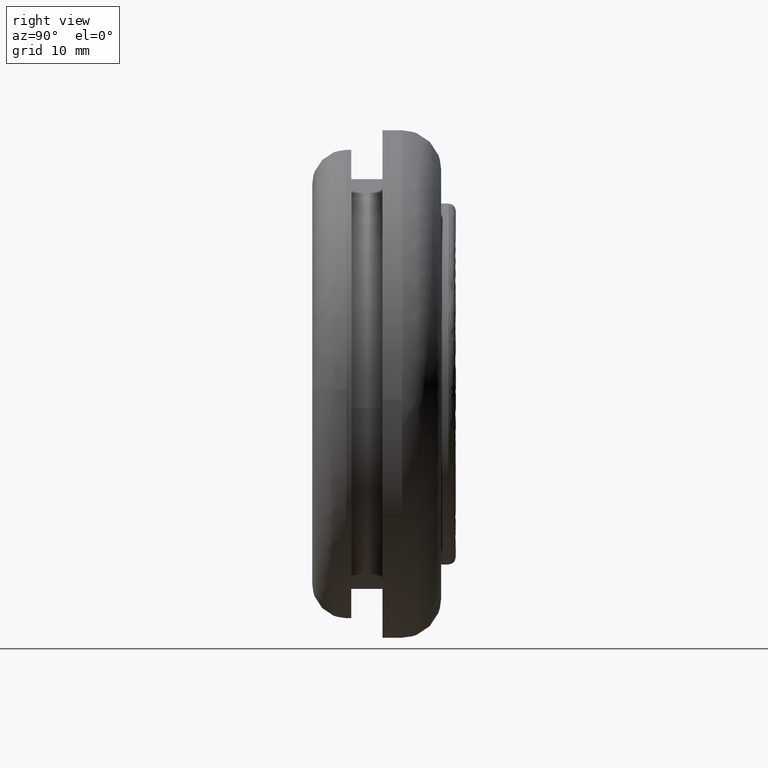
[diagram: clean part render]
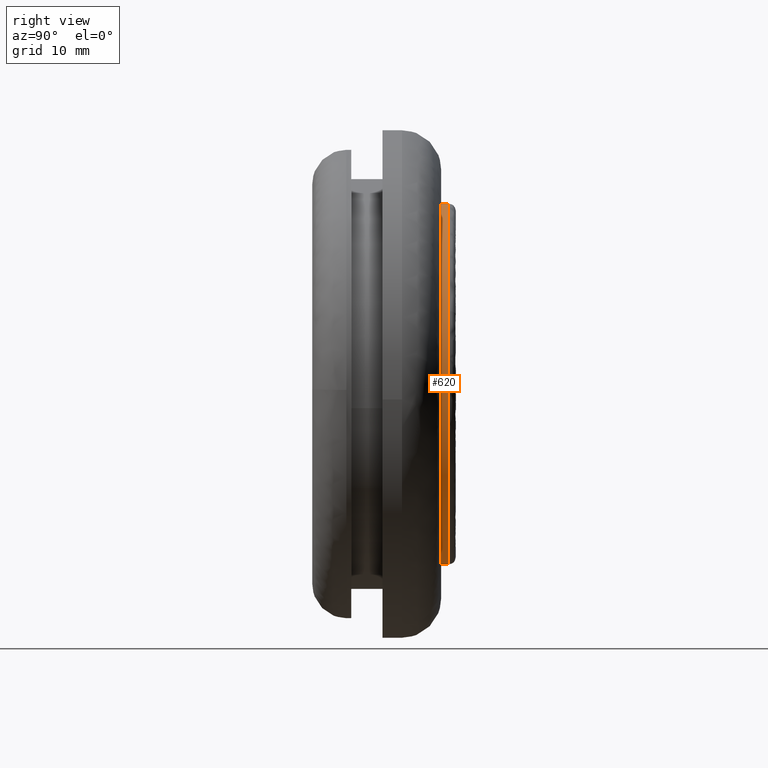
[diagram: same view with one face highlighted and labeled with its STEP entity id]
A machine part, right view. The second image highlights one B-rep face of the part: STEP entity #620.
In plain terms, the highlighted face is a freeform B-spline surface patch.
Its self-contained STEP definition (entity closure, byte-faithful):
#450=CARTESIAN_POINT('',(-12.424716620370749,13.968750000174323,-13.706801848114782));
#451=CARTESIAN_POINT('',(-5.932195346335092,13.968750000174323,-19.592035900193554));
#452=CARTESIAN_POINT('',(2.734474105897798,13.968750000174319,-18.296793472195450));
#453=CARTESIAN_POINT('',(21.031267578093257,13.968750000174319,-15.562319366297659));
#454=CARTESIAN_POINT('',(18.296793472195450,13.968750000174319,2.734474105897798));
#455=CARTESIAN_POINT('',(15.562319366297659,13.968750000174319,21.031267578093257));
#456=CARTESIAN_POINT('',(-2.734474105897798,13.968750000174319,18.296793472195450));
#457=CARTESIAN_POINT('',(-21.031267578093257,13.968750000174319,15.562319366297659));
#458=CARTESIAN_POINT('',(-18.296793472195450,13.968750000174319,-2.734474105897799));
#459=CARTESIAN_POINT('',(-12.424716620370749,13.180781249995643,-13.706801848114782));
#460=CARTESIAN_POINT('',(-5.932195346335092,13.180781249995645,-19.592035900193554));
#461=CARTESIAN_POINT('',(2.734474105897798,13.180781249995640,-18.296793472195450));
#462=CARTESIAN_POINT('',(21.031267578093257,13.180781249995638,-15.562319366297659));
#463=CARTESIAN_POINT('',(18.296793472195450,13.180781249995640,2.734474105897798));
#464=CARTESIAN_POINT('',(15.562319366297659,13.180781249995638,21.031267578093257));
#465=CARTESIAN_POINT('',(-2.734474105897798,13.180781249995640,18.296793472195450));
#466=CARTESIAN_POINT('',(-21.031267578093257,13.180781249995638,15.562319366297659));
#467=CARTESIAN_POINT('',(-18.296793472195450,13.180781249995640,-2.734474105897799));
#475=(BOUNDED_SURFACE()B_SPLINE_SURFACE(2,1,((#450,#459),(#451,#460),(#452,#461),(#453,#462),(#454,#463),(#455,#464),(#456,#465),(#457,#466),(#458,#467)),.UNSPECIFIED.,.F.,.F.,.U.)B_SPLINE_SURFACE_WITH_KNOTS((3,2,2,2,3),(2,2),(0.0,17.165010024741051,47.816813640350077,78.468617255959103,109.120420871568100),(0.0,1.0),.UNSPECIFIED.)GEOMETRIC_REPRESENTATION_ITEM()RATIONAL_B_SPLINE_SURFACE(((0.855662221768731,0.855662221768731),(0.835979797464467,0.835979797464467),(1.0,1.0),(0.707106781186548,0.707106781186548),(1.0,1.0),(0.707106781186548,0.707106781186548),(1.0,1.0),(0.707106781186548,0.707106781186548),(1.0,1.0)))REPRESENTATION_ITEM('')SURFACE());
#476=CARTESIAN_POINT('',(-12.424715516434199,13.950000000000170,-13.706802848792890));
#477=VERTEX_POINT('',#476);
#478=CARTESIAN_POINT('',(0.0,13.949999999999999,-18.500000000000000));
#479=VERTEX_POINT('',#478);
#480=CARTESIAN_POINT('',(-12.424715516434199,13.950000000000173,-13.706802848792892));
#481=CARTESIAN_POINT('',(-7.136915704833710,13.950000000000003,-18.500000000000004));
#482=CARTESIAN_POINT('',(0.0,13.949999999999999,-18.500000000000000));
#490=(BOUNDED_CURVE()B_SPLINE_CURVE(2,(#480,#481,#482),.UNSPECIFIED.,.F.,.U.)B_SPLINE_CURVE_WITH_KNOTS((3,3),(0.882398565921947,1.0),.UNSPECIFIED.)CURVE()GEOMETRIC_REPRESENTATION_ITEM()RATIONAL_B_SPLINE_CURVE((0.854066434330710,0.862221349743204,1.0))REPRESENTATION_ITEM(''));
#491=EDGE_CURVE('',#477,#479,#490,.T.);
#492=ORIENTED_EDGE('',*,*,#491,.T.);
#493=CARTESIAN_POINT('',(16.931961693486901,13.950000000170069,7.453769060702924));
#494=VERTEX_POINT('',#493);
#495=CARTESIAN_POINT('',(0.0,13.949999999999999,-18.500000000000000));
#496=CARTESIAN_POINT('',(18.500000000000000,13.949999999999999,-18.500000000000000));
#497=CARTESIAN_POINT('',(18.500000000000000,13.949999999999999,-2.939055E-016));
#498=CARTESIAN_POINT('',(18.500000000000004,13.950000000000006,3.891817473045955));
#499=CARTESIAN_POINT('',(16.931961693486905,13.950000000170064,7.453769060702924));
#507=(BOUNDED_CURVE()B_SPLINE_CURVE(2,(#495,#496,#497,#498,#499),.UNSPECIFIED.,.F.,.U.)B_SPLINE_CURVE_WITH_KNOTS((3,2,3),(0.0,0.250000000000000,0.318414990138551),.UNSPECIFIED.)CURVE()GEOMETRIC_REPRESENTATION_ITEM()RATIONAL_B_SPLINE_CURVE((1.0,0.707106781186548,1.0,0.919846853292917,0.883563120518145))REPRESENTATION_ITEM(''));
#508=EDGE_CURVE('',#479,#494,#507,.T.);
#509=ORIENTED_EDGE('',*,*,#508,.T.);
#510=CARTESIAN_POINT('',(0.0,13.949999999999999,18.500000000000000));
#511=VERTEX_POINT('',#510);
#512=CARTESIAN_POINT('',(16.931961693486905,13.950000000170064,7.453769060702924));
#513=CARTESIAN_POINT('',(12.069202380466150,13.949999999999994,18.499999999999996));
#514=CARTESIAN_POINT('',(0.0,13.949999999999999,18.500000000000000));
#522=(BOUNDED_CURVE()B_SPLINE_CURVE(2,(#512,#513,#514),.UNSPECIFIED.,.F.,.U.)B_SPLINE_CURVE_WITH_KNOTS((3,3),(0.318414990138551,0.500000000000000),.UNSPECIFIED.)CURVE()GEOMETRIC_REPRESENTATION_ITEM()RATIONAL_B_SPLINE_CURVE((0.883563120518145,0.787259927893630,1.0))REPRESENTATION_ITEM(''));
#523=EDGE_CURVE('',#494,#511,#522,.T.);
#524=ORIENTED_EDGE('',*,*,#523,.T.);
#525=CARTESIAN_POINT('',(-7.453769060702777,13.950000000167821,16.931961693486961));
#526=VERTEX_POINT('',#525);
#527=CARTESIAN_POINT('',(0.0,13.949999999999999,18.500000000000000));
#528=CARTESIAN_POINT('',(-3.891817473045781,13.949999999999999,18.500000000000004));
#529=CARTESIAN_POINT('',(-7.453769060702777,13.950000000167821,16.931961693486958));
#537=(BOUNDED_CURVE()B_SPLINE_CURVE(2,(#527,#528,#529),.UNSPECIFIED.,.F.,.U.)B_SPLINE_CURVE_WITH_KNOTS((3,3),(0.500000000000000,0.568414990138548),.UNSPECIFIED.)CURVE()GEOMETRIC_REPRESENTATION_ITEM()RATIONAL_B_SPLINE_CURVE((1.0,0.919846853292920,0.883563120518148))REPRESENTATION_ITEM(''));
#538=EDGE_CURVE('',#511,#526,#537,.T.);
#539=ORIENTED_EDGE('',*,*,#538,.T.);
#540=CARTESIAN_POINT('',(-18.296796751997920,13.950000000000241,-2.734452160046983));
#541=VERTEX_POINT('',#540);
#542=CARTESIAN_POINT('',(-7.453769060702778,13.950000000167822,16.931961693486961));
#543=CARTESIAN_POINT('',(-18.500000000000007,13.949999999999998,12.069202380466374));
#544=CARTESIAN_POINT('',(-18.500000000000000,13.949999999999999,-2.939055E-016));
#545=CARTESIAN_POINT('',(-18.499999999999996,13.949999999999999,-1.374776323652159));
#546=CARTESIAN_POINT('',(-18.296796751997920,13.950000000000243,-2.734452160046983));
#554=(BOUNDED_CURVE()B_SPLINE_CURVE(2,(#542,#543,#544,#545,#546),.UNSPECIFIED.,.F.,.U.)B_SPLINE_CURVE_WITH_KNOTS((3,2,3),(0.568414990138548,0.750000000000000,0.775488768951616),.UNSPECIFIED.)CURVE()GEOMETRIC_REPRESENTATION_ITEM()RATIONAL_B_SPLINE_CURVE((0.883563120518148,0.787259927893627,1.0,0.970138049672675,0.946365254164053))REPRESENTATION_ITEM(''));
#555=EDGE_CURVE('',#526,#541,#554,.T.);
#556=ORIENTED_EDGE('',*,*,#555,.T.);
#557=CARTESIAN_POINT('',(-18.296794574993569,13.199999999999999,-2.734466726882952));
#558=VERTEX_POINT('',#557);
#559=CARTESIAN_POINT('',(-18.296796751997920,13.950000000000241,-2.734452160046983));
#560=CARTESIAN_POINT('',(-18.296794574993569,13.199999999999999,-2.734466726882952));
#561=QUASI_UNIFORM_CURVE('',1,(#559,#560),.UNSPECIFIED.,.F.,.U.);
#562=EDGE_CURVE('',#541,#558,#561,.T.);
#563=ORIENTED_EDGE('',*,*,#562,.T.);
#564=CARTESIAN_POINT('',(0.0,13.199999999999999,18.500000000000000));
#565=VERTEX_POINT('',#564);
#566=CARTESIAN_POINT('',(0.0,13.199999999999999,18.500000000000000));
#567=CARTESIAN_POINT('',(-18.500000000000000,13.199999999999998,18.500000000000000));
#568=CARTESIAN_POINT('',(-18.500000000000000,13.199999999999999,-2.939055E-016));
#569=CARTESIAN_POINT('',(-18.499999999999996,13.199999999999998,-1.374783728627141));
#570=CARTESIAN_POINT('',(-18.296794574993577,13.200000000000005,-2.734466726882951));
#578=(BOUNDED_CURVE()B_SPLINE_CURVE(2,(#566,#567,#568,#569,#570),.UNSPECIFIED.,.F.,.U.)B_SPLINE_CURVE_WITH_KNOTS((3,2,3),(0.500000000000000,0.750000000000000,0.775488902142310),.UNSPECIFIED.)CURVE()GEOMETRIC_REPRESENTATION_ITEM()RATIONAL_B_SPLINE_CURVE((1.0,0.707106781186548,1.0,0.970137893630071,0.946365005716354))REPRESENTATION_ITEM(''));
#579=EDGE_CURVE('',#565,#558,#578,.T.);
#580=ORIENTED_EDGE('',*,*,#579,.F.);
#581=CARTESIAN_POINT('',(0.0,13.199999999999999,-18.500000000000000));
#582=VERTEX_POINT('',#581);
#583=CARTESIAN_POINT('',(0.0,13.199999999999999,-18.500000000000000));
#584=CARTESIAN_POINT('',(18.500000000000000,13.199999999999998,-18.500000000000000));
#585=CARTESIAN_POINT('',(18.500000000000000,13.199999999999999,-2.939055E-016));
#586=CARTESIAN_POINT('',(18.500000000000000,13.199999999999998,18.500000000000000));
#587=CARTESIAN_POINT('',(0.0,13.199999999999999,18.500000000000000));
#595=(BOUNDED_CURVE()B_SPLINE_CURVE(2,(#583,#584,#585,#586,#587),.UNSPECIFIED.,.F.,.U.)B_SPLINE_CURVE_WITH_KNOTS((3,2,3),(0.0,0.250000000000000,0.500000000000000),.UNSPECIFIED.)CURVE()GEOMETRIC_REPRESENTATION_ITEM()RATIONAL_B_SPLINE_CURVE((1.0,0.707106781186548,1.0,0.707106781186548,1.0))REPRESENTATION_ITEM(''));
#596=EDGE_CURVE('',#582,#565,#595,.T.);
#597=ORIENTED_EDGE('',*,*,#596,.F.);
#598=CARTESIAN_POINT('',(-12.424715529969420,13.199999999999999,-13.706802836523710));
#599=VERTEX_POINT('',#598);
#600=CARTESIAN_POINT('',(-12.424715529969426,13.200000000000005,-13.706802836523707));
#601=CARTESIAN_POINT('',(-7.136915715327329,13.200000000000003,-18.499999999999996));
#602=CARTESIAN_POINT('',(0.0,13.199999999999999,-18.500000000000000));
#610=(BOUNDED_CURVE()B_SPLINE_CURVE(2,(#600,#601,#602),.UNSPECIFIED.,.F.,.U.)B_SPLINE_CURVE_WITH_KNOTS((3,3),(0.882398565772858,1.0),.UNSPECIFIED.)CURVE()GEOMETRIC_REPRESENTATION_ITEM()RATIONAL_B_SPLINE_CURVE((0.854066434310033,0.862221349568535,1.0))REPRESENTATION_ITEM(''));
#611=EDGE_CURVE('',#599,#582,#610,.T.);
#612=ORIENTED_EDGE('',*,*,#611,.F.);
#613=CARTESIAN_POINT('',(-12.424715516434199,13.950000000000170,-13.706802848792890));
#614=CARTESIAN_POINT('',(-12.424715529969420,13.199999999999999,-13.706802836523710));
#615=QUASI_UNIFORM_CURVE('',1,(#613,#614),.UNSPECIFIED.,.F.,.U.);
#616=EDGE_CURVE('',#477,#599,#615,.T.);
#617=ORIENTED_EDGE('',*,*,#616,.F.);
#618=EDGE_LOOP('',(#492,#509,#524,#539,#556,#563,#580,#597,#612,#617));
#619=FACE_OUTER_BOUND('',#618,.T.);
#620=ADVANCED_FACE('',(#619),#475,.T.);